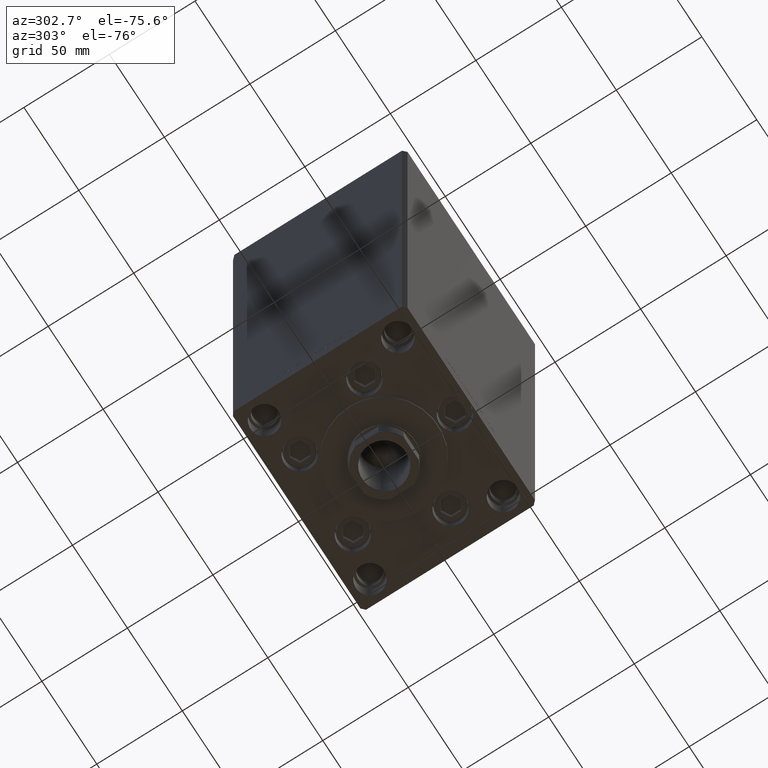
[diagram: clean part render]
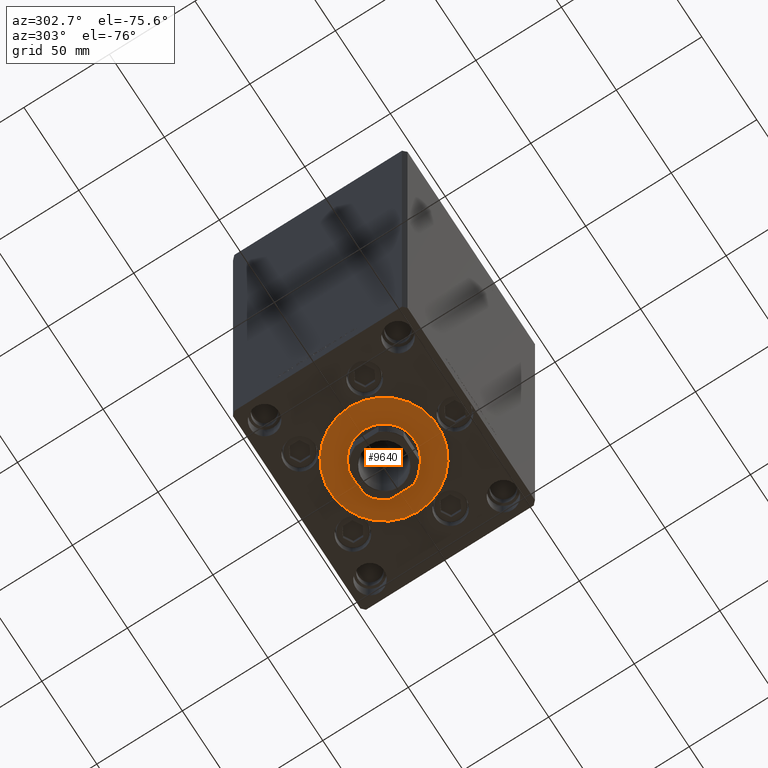
[diagram: same view with one face highlighted and labeled with its STEP entity id]
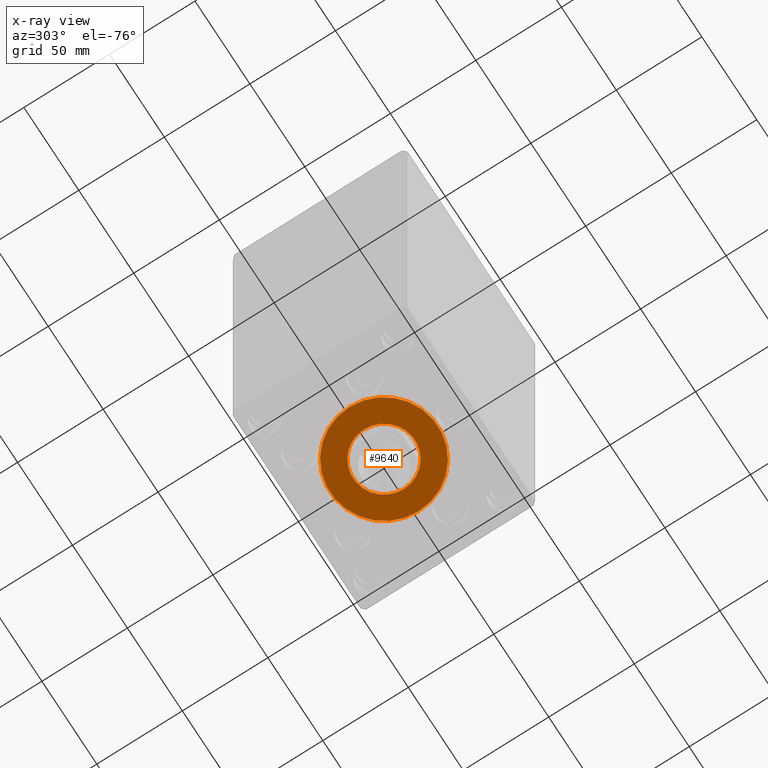
[diagram: x-ray of the same camera — body ghosted, the highlighted face saturated]
A machine part, auxiliary view. The second image highlights one B-rep face of the part: STEP entity #9640.
The next image is the same camera in x-ray: the body ghosted, the highlighted face saturated — about 0% of this face is hidden behind the body in this view.
In plain terms, the highlighted planar face has unit normal (0, 0, -1).
Its self-contained STEP definition (entity closure, byte-faithful):
#301 = DIRECTION ( 'NONE',  ( 0.000000000000000000, 0.000000000000000000, 1.000000000000000000 ) ) ;
#434 = EDGE_CURVE ( 'NONE', #17725, #12017, #8426, .T. ) ;
#772 = FACE_BOUND ( 'NONE', #47780, .T. ) ;
#4444 = ORIENTED_EDGE ( 'NONE', *, *, #11462, .T. ) ;
#8426 = CIRCLE ( 'NONE', #26671, 18.00000000000000000 ) ;
#9640 = ADVANCED_FACE ( 'NONE', ( #772, #45765 ), #42271, .T. ) ;
#11021 = CARTESIAN_POINT ( 'NONE',  ( 18.00000000000000000, -6.938893903907228378E-15, 2.000000000000000000 ) ) ;
#11042 = AXIS2_PLACEMENT_3D ( 'NONE', #16724, #16470, #31640 ) ;
#11462 = EDGE_CURVE ( 'NONE', #24119, #27149, #22160, .T. ) ;
#12017 = VERTEX_POINT ( 'NONE', #13790 ) ;
#13790 = CARTESIAN_POINT ( 'NONE',  ( -18.00000000000000000, -4.734529665441992555E-15, 2.000000000000000000 ) ) ;
#14518 = ORIENTED_EDGE ( 'NONE', *, *, #46898, .F. ) ;
#15085 = EDGE_LOOP ( 'NONE', ( #46684, #4444 ) ) ;
#15156 = AXIS2_PLACEMENT_3D ( 'NONE', #18571, #31007, #33997 ) ;
#15196 = DIRECTION ( 'NONE',  ( 0.000000000000000000, 0.000000000000000000, 1.000000000000000000 ) ) ;
#15927 = CARTESIAN_POINT ( 'NONE',  ( 0.000000000000000000, -6.938893903907228378E-15, 2.000000000000000000 ) ) ;
#16470 = DIRECTION ( 'NONE',  ( 0.000000000000000000, 0.000000000000000000, 1.000000000000000000 ) ) ;
#16724 = CARTESIAN_POINT ( 'NONE',  ( 0.000000000000000000, -6.938893903907228378E-15, 2.000000000000000000 ) ) ;
#17725 = VERTEX_POINT ( 'NONE', #11021 ) ;
#18571 = CARTESIAN_POINT ( 'NONE',  ( 0.000000000000000000, -6.938893903907228378E-15, 2.000000000000000000 ) ) ;
#19754 = CARTESIAN_POINT ( 'NONE',  ( 31.50000000000000000, -3.081256486593065689E-15, 2.000000000000000000 ) ) ;
#22160 = CIRCLE ( 'NONE', #11042, 31.50000000000000000 ) ;
#22427 = DIRECTION ( 'NONE',  ( 1.000000000000000000, 0.000000000000000000, 0.000000000000000000 ) ) ;
#22811 = CIRCLE ( 'NONE', #29159, 18.00000000000000000 ) ;
#23387 = DIRECTION ( 'NONE',  ( 1.000000000000000000, 0.000000000000000000, -0.000000000000000000 ) ) ;
#23845 = DIRECTION ( 'NONE',  ( 1.000000000000000000, 0.000000000000000000, 0.000000000000000000 ) ) ;
#24119 = VERTEX_POINT ( 'NONE', #19754 ) ;
#25471 = CIRCLE ( 'NONE', #15156, 31.50000000000000000 ) ;
#26671 = AXIS2_PLACEMENT_3D ( 'NONE', #34351, #301, #22427 ) ;
#27149 = VERTEX_POINT ( 'NONE', #36459 ) ;
#29159 = AXIS2_PLACEMENT_3D ( 'NONE', #46710, #46227, #23845 ) ;
#31007 = DIRECTION ( 'NONE',  ( 0.000000000000000000, 0.000000000000000000, 1.000000000000000000 ) ) ;
#31640 = DIRECTION ( 'NONE',  ( 1.000000000000000000, 0.000000000000000000, 0.000000000000000000 ) ) ;
#33997 = DIRECTION ( 'NONE',  ( 1.000000000000000000, 0.000000000000000000, 0.000000000000000000 ) ) ;
#34351 = CARTESIAN_POINT ( 'NONE',  ( 0.000000000000000000, -6.938893903907228378E-15, 2.000000000000000000 ) ) ;
#36459 = CARTESIAN_POINT ( 'NONE',  ( -31.50000000000000000, -6.938893903907228378E-15, 2.000000000000000000 ) ) ;
#39265 = ORIENTED_EDGE ( 'NONE', *, *, #434, .F. ) ;
#39454 = EDGE_CURVE ( 'NONE', #27149, #24119, #25471, .T. ) ;
#42271 = PLANE ( 'NONE',  #47500 ) ;
#45765 = FACE_OUTER_BOUND ( 'NONE', #15085, .T. ) ;
#46227 = DIRECTION ( 'NONE',  ( 0.000000000000000000, 0.000000000000000000, 1.000000000000000000 ) ) ;
#46684 = ORIENTED_EDGE ( 'NONE', *, *, #39454, .T. ) ;
#46710 = CARTESIAN_POINT ( 'NONE',  ( 0.000000000000000000, -6.938893903907228378E-15, 2.000000000000000000 ) ) ;
#46898 = EDGE_CURVE ( 'NONE', #12017, #17725, #22811, .T. ) ;
#47500 = AXIS2_PLACEMENT_3D ( 'NONE', #15927, #15196, #23387 ) ;
#47780 = EDGE_LOOP ( 'NONE', ( #39265, #14518 ) ) ;